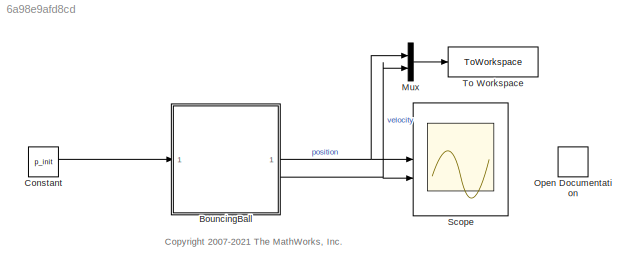
MODEL slx_6a98e9afd8cd
KIND model
CONFIG AbsTol = auto
CONFIG EnableMultiTasking = on
CONFIG FixedStep = auto
CONFIG MaxStep = .1
CONFIG MinStep = auto
CONFIG RelTol = 1e-6
CONFIG SampleTimeConstraint = Unconstrained
CONFIG SolverName = ode15s
CONFIG StartTime = 0.0
CONFIG StopTime = 10
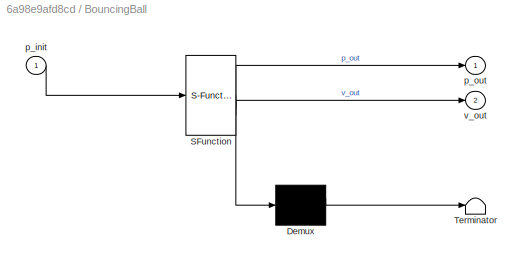
BLOCK [SubSystem] BouncingBall
  ErrorFcn = Stateflow.Translate.translate
  PermitHierarchicalResolution = ExplicitOnly
  SFBlockType = Chart
  TreatAsAtomicUnit = on
BLOCK [Demux] BouncingBall/ Demux 
  Outputs = 1
BLOCK [S-Function] BouncingBall/ SFunction 
  EnableBusSupport = on
  FunctionName = sf_sfun
  PortCounts = [1 3]
  SFcnIsStateOwnerBlock = off
  SFunctionDeploymentMode = off
  Tag = Stateflow S-Function 1
BLOCK [Terminator] BouncingBall/ Terminator 
BLOCK [Inport] BouncingBall/p_init
BLOCK [Outport] BouncingBall/p_out
  VectorParamsAs1DForOutWhenUnconnected = off
BLOCK [Outport] BouncingBall/v_out
  Port = 2
  VectorParamsAs1DForOutWhenUnconnected = off
BLOCK [Constant] Constant
  Value = p_init
BLOCK [Mux] Mux
  DisplayOption = bar
  Inputs = 2
BLOCK [CustomCallbackButton] Open Documentation
  Configuration = {"components":[{"name":"BackgroundImageComponent","settings":{"image":{"size":[0,0],"src":"default","srcOrientation":"Right"},"position":[0,0,1,1]}},{"name":"ButtonStateComponent","settings":{"buttonType":"momentary","clickFcn":"showExample('stateflow\/ModelingABouncingBallExample')","onValue":1,"position":[0,0,1,1],"pressDelay":"500","pressFcn":"","repeatInterval":"0","states":[{"horizontalAlignm...<+1761ch>
  CustomBackgroundColor = {"color":[0.9568627451,0.9568627451,0.9568627451],"show":true}
BLOCK [Scope] Scope
  Floating = off
  NumInputPorts = 2
  ScopeSpecificationString = Simulink.scopes.TimeScopeBlockCfg('CurrentConfiguration', extmgr.ConfigurationSet(extmgr.Configuration('Core','General UI',true,'MessageLogAutoOpenMode','for warn/fail messages','ShowCloseAll',true,'ShowBringAllForward',true),extmgr.Configuration('Core','Source UI',true,'PlaybackToolbar',true),extmgr.Configuration('Sources','WiredSimulink',true,'PointsPerSignal',50000,'DataLoggingLimitDataPoints',...<+2575ch>
BLOCK [ToWorkspace] To Workspace
  FixptAsFi = on
  MaxDataPoints = inf
  SampleTime = 0.01
  VariableName = simout
ANNOTATION (root): <copyright redacted>
NET BouncingBall:1 -> Mux:1, Scope:1
NET BouncingBall:2 -> Mux:2, Scope:2
LINE Constant:1 -> BouncingBall:1
LINE Mux:1 -> To Workspace:1
note: NET lines group one-source signal fan-out (src -> all destinations, sorted); 1:1 wires keep LINE
CHART BouncingBall states=1 transitions=2
  STATE_LABEL 'Falling\ndu:\n  % derivatives\n  p_dot = v;\n  v_dot = -9.81;\n  % outputs\n  p_out = p;\n  v_out = v;'
CHART  states=0 transitions=0
